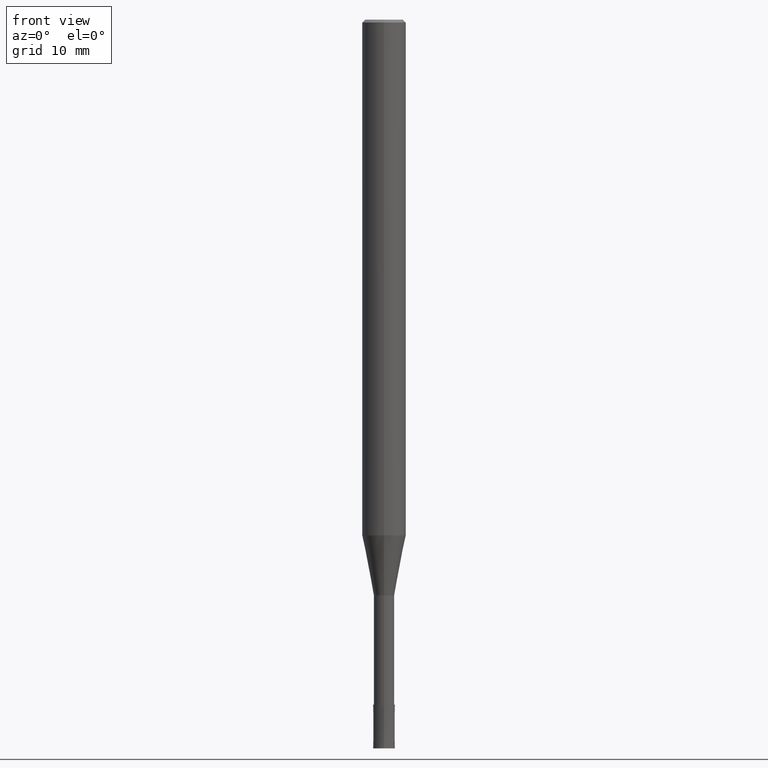
[diagram: clean part render]
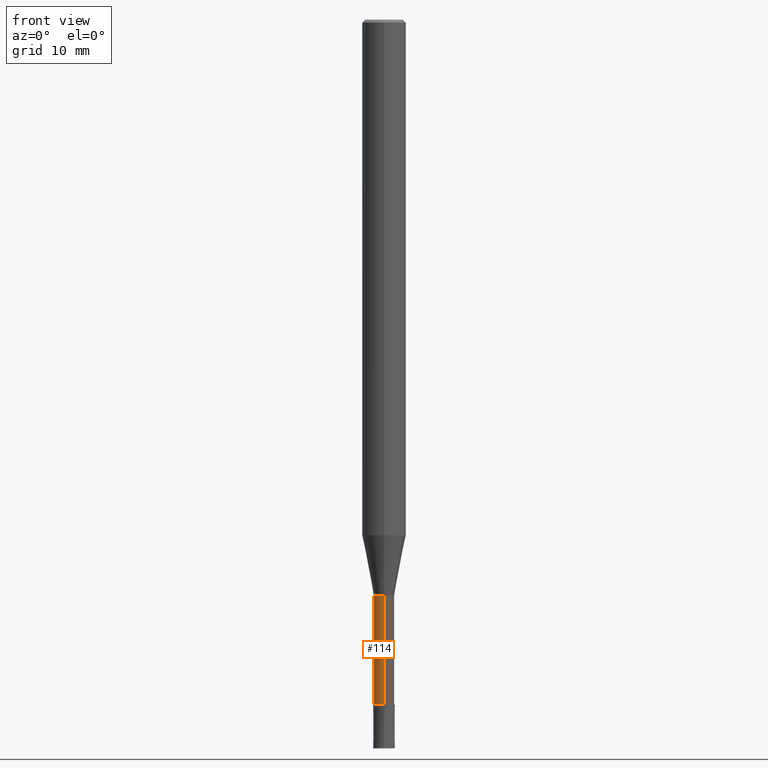
[diagram: same view with one face highlighted and labeled with its STEP entity id]
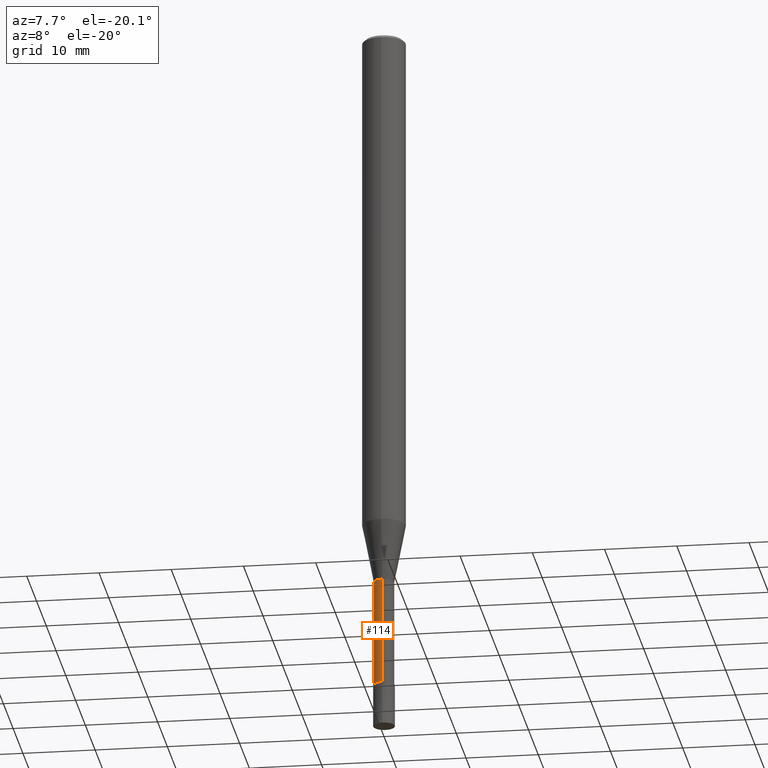
[diagram: same view with one face highlighted and labeled with its STEP entity id]
A machine part, front view. The second image highlights one B-rep face of the part: STEP entity #114.
A second angle (auxiliary view) of the same face is appended — the face is thin or edge-on in the first view.
In plain terms, the highlighted cylindrical surface (edge-blend (fillet) strip) has radius 1.4 mm, axis along (-0, -0, 1).
Its self-contained STEP definition (entity closure, byte-faithful):
#96=VERTEX_POINT('',#234);
#114=ADVANCED_FACE('',(#256),#257,.T.);
#122=EDGE_CURVE('',#96,#194,#265,.T.);
#140=VERTEX_POINT('',#286);
#148=EDGE_CURVE('',#160,#140,#295,.T.);
#152=EDGE_CURVE('',#140,#96,#299,.T.);
#160=VERTEX_POINT('',#308);
#174=EDGE_CURVE('',#160,#194,#322,.T.);
#194=VERTEX_POINT('',#346);
#234=CARTESIAN_POINT('',(0.0,1.39995,-79.0));
#256=FACE_OUTER_BOUND('',#404,.T.);
#257=CYLINDRICAL_SURFACE('',#405,1.39995);
#265=LINE('',#415,#416);
#286=CARTESIAN_POINT('',(1.71438766503364E-016,-1.39995,-79.0));
#295=LINE('',#454,#455);
#299=CIRCLE('',#460,1.39995);
#308=CARTESIAN_POINT('',(1.71438766503364E-016,-1.39995,-94.0));
#322=CIRCLE('',#489,1.39995);
#346=CARTESIAN_POINT('',(0.0,1.39995,-94.0));
#404=EDGE_LOOP('',(#583,#584,#585,#586));
#405=AXIS2_PLACEMENT_3D('',#587,#588,#589);
#415=CARTESIAN_POINT('',(-1.71438766503364E-016,1.39995,-86.5));
#416=VECTOR('',#593,1.0);
#454=CARTESIAN_POINT('',(1.71438766503364E-016,-1.39995,-86.5));
#455=VECTOR('',#640,1.0);
#460=AXIS2_PLACEMENT_3D('',#641,#642,#643);
#489=AXIS2_PLACEMENT_3D('',#661,#662,#663);
#583=ORIENTED_EDGE('',*,*,#122,.T.);
#584=ORIENTED_EDGE('',*,*,#174,.F.);
#585=ORIENTED_EDGE('',*,*,#148,.T.);
#586=ORIENTED_EDGE('',*,*,#152,.T.);
#587=CARTESIAN_POINT('',(0.0,0.0,-86.5));
#588=DIRECTION('',(-0.0,-0.0,1.0));
#589=DIRECTION('',(0.0,1.0,0.0));
#593=DIRECTION('',(0.0,0.0,-1.0));
#640=DIRECTION('',(-0.0,-0.0,1.0));
#641=CARTESIAN_POINT('',(0.0,0.0,-79.0));
#642=DIRECTION('',(0.0,0.0,-1.0));
#643=DIRECTION('',(0.0,1.0,0.0));
#661=CARTESIAN_POINT('',(0.0,0.0,-94.0));
#662=DIRECTION('',(0.0,0.0,-1.0));
#663=DIRECTION('',(0.0,1.0,0.0));